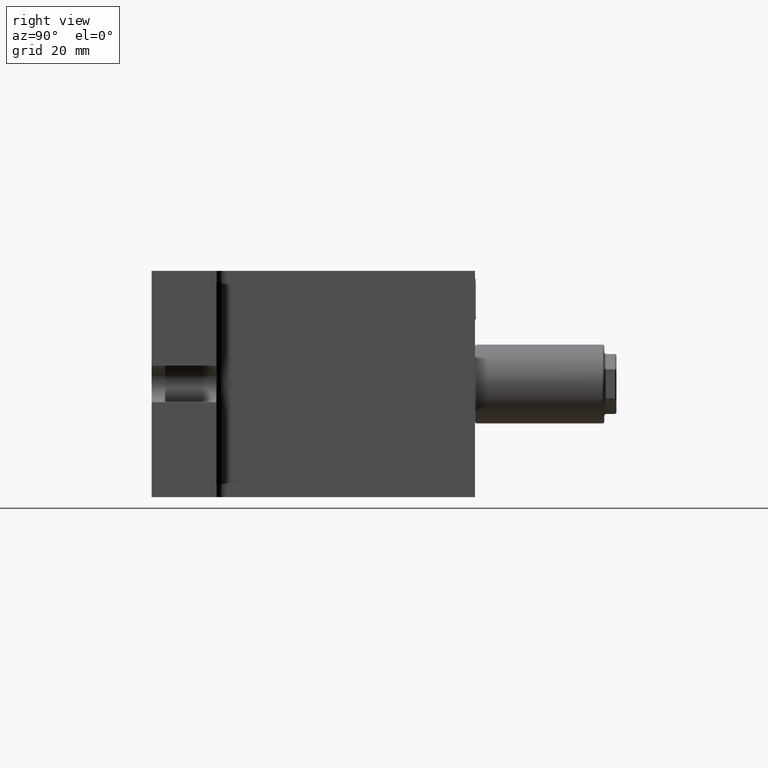
[diagram: clean part render]
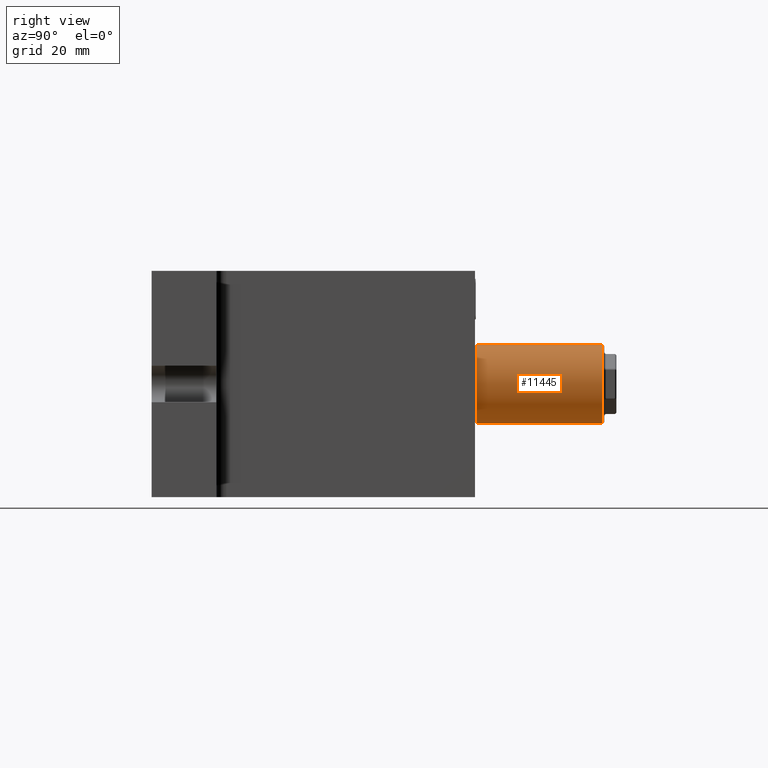
[diagram: same view with one face highlighted and labeled with its STEP entity id]
A machine part, right view. The second image highlights one B-rep face of the part: STEP entity #11445.
In plain terms, the highlighted cylindrical surface (partial cylindrical patch) has radius 9.75 mm, axis along (-0, -1, -0).
Its self-contained STEP definition (entity closure, byte-faithful):
#126 = CARTESIAN_POINT ( 'NONE',  ( 25.00000000000000000, 58.00000000000000000, -9.750000000000000000 ) ) ;
#132 = DIRECTION ( 'NONE',  ( -5.959270968386779200E-017, -1.000000000000000000, -1.089523766022739900E-016 ) ) ;
#225 = VECTOR ( 'NONE', #20667, 1000.000000000000000 ) ;
#270 = CARTESIAN_POINT ( 'NONE',  ( 25.00000000000000000, 48.00000000000000000, 9.750000000000000000 ) ) ;
#287 = VECTOR ( 'NONE', #907, 1000.000000000000000 ) ;
#328 = CARTESIAN_POINT ( 'NONE',  ( 25.00000000000000000, 71.50000000000000000, 9.750000000000014200 ) ) ;
#596 = CARTESIAN_POINT ( 'NONE',  ( 25.00000000000000000, 72.00000000000000000, 9.750000000000014200 ) ) ;
#727 = CARTESIAN_POINT ( 'NONE',  ( 25.00000000000000000, 72.00000000000000000, 9.750000000000000000 ) ) ;
#790 = EDGE_CURVE ( 'NONE', #20809, #1672, #17455, .T. ) ;
#907 = DIRECTION ( 'NONE',  ( -5.959270968386779200E-017, -1.000000000000000000, -1.089523766022739900E-016 ) ) ;
#966 = CARTESIAN_POINT ( 'NONE',  ( 25.00000000000000000, 72.00000000000000000, -9.750000000000000000 ) ) ;
#994 = DIRECTION ( 'NONE',  ( 5.959270968386779200E-017, 1.000000000000000000, 1.089523766022739900E-016 ) ) ;
#1120 = CARTESIAN_POINT ( 'NONE',  ( 24.99999999999999600, 72.00000000000000000, -9.749999999999985800 ) ) ;
#1163 = LINE ( 'NONE', #5758, #5088 ) ;
#1210 = DIRECTION ( 'NONE',  ( 5.959270968386779200E-017, 1.000000000000000000, 1.089523766022739900E-016 ) ) ;
#1672 = VERTEX_POINT ( 'NONE', #9563 ) ;
#1724 = EDGE_CURVE ( 'NONE', #2941, #12449, #18504, .T. ) ;
#1849 = CARTESIAN_POINT ( 'NONE',  ( 25.00000000000000000, 66.00000000000000000, 9.750000000000000000 ) ) ;
#1937 = ORIENTED_EDGE ( 'NONE', *, *, #12181, .T. ) ;
#2329 = ORIENTED_EDGE ( 'NONE', *, *, #7543, .F. ) ;
#2348 = EDGE_CURVE ( 'NONE', #14018, #19616, #11083, .T. ) ;
#2438 = ORIENTED_EDGE ( 'NONE', *, *, #10320, .T. ) ;
#2494 = EDGE_CURVE ( 'NONE', #20809, #21576, #12919, .T. ) ;
#2941 = VERTEX_POINT ( 'NONE', #15650 ) ;
#3083 = VERTEX_POINT ( 'NONE', #7759 ) ;
#3495 = DIRECTION ( 'NONE',  ( -5.959270968386779200E-017, -1.000000000000000000, -1.089523766022739900E-016 ) ) ;
#4282 = CARTESIAN_POINT ( 'NONE',  ( 24.99999999999999600, 72.00000000000000000, -9.749999999999985800 ) ) ;
#4411 = DIRECTION ( 'NONE',  ( 5.959270968386779200E-017, 1.000000000000000000, 1.089523766022739900E-016 ) ) ;
#4803 = VECTOR ( 'NONE', #5654, 1000.000000000000000 ) ;
#5088 = VECTOR ( 'NONE', #9215, 1000.000000000000000 ) ;
#5201 = CARTESIAN_POINT ( 'NONE',  ( 25.00000000000000000, 72.00000000000000000, 1.387778780781446000E-014 ) ) ;
#5492 = ORIENTED_EDGE ( 'NONE', *, *, #9371, .F. ) ;
#5520 = DIRECTION ( 'NONE',  ( -5.959270968386779200E-017, -1.000000000000000000, -1.089523766022739900E-016 ) ) ;
#5654 = DIRECTION ( 'NONE',  ( -5.959270968386779200E-017, -1.000000000000000000, -1.089523766022739900E-016 ) ) ;
#5668 = VERTEX_POINT ( 'NONE', #17061 ) ;
#5744 = AXIS2_PLACEMENT_3D ( 'NONE', #10157, #16974, #18528 ) ;
#5758 = CARTESIAN_POINT ( 'NONE',  ( 24.99999999999999600, 72.00000000000000000, -9.749999999999985800 ) ) ;
#5818 = CIRCLE ( 'NONE', #5744, 9.750000000000000000 ) ;
#5890 = DIRECTION ( 'NONE',  ( -5.959270968386779200E-017, -1.000000000000000000, -1.089523766022739900E-016 ) ) ;
#6061 = DIRECTION ( 'NONE',  ( 0.0000000000000000000, 0.0000000000000000000, -1.000000000000000000 ) ) ;
#6303 = ORIENTED_EDGE ( 'NONE', *, *, #17873, .F. ) ;
#6437 = LINE ( 'NONE', #11152, #17173 ) ;
#6826 = ORIENTED_EDGE ( 'NONE', *, *, #21386, .F. ) ;
#6909 = CARTESIAN_POINT ( 'NONE',  ( 25.00000000000000000, 48.00000000000000000, -9.750000000000000000 ) ) ;
#7018 = ORIENTED_EDGE ( 'NONE', *, *, #20412, .T. ) ;
#7063 = ORIENTED_EDGE ( 'NONE', *, *, #790, .F. ) ;
#7425 = VECTOR ( 'NONE', #4411, 1000.000000000000000 ) ;
#7543 = EDGE_CURVE ( 'NONE', #8110, #18280, #14066, .T. ) ;
#7757 = CARTESIAN_POINT ( 'NONE',  ( 24.99999999999999300, 71.50000000000000000, -9.749999999999985800 ) ) ;
#7759 = CARTESIAN_POINT ( 'NONE',  ( 25.00000000000000000, 66.00000000000000000, -9.750000000000000000 ) ) ;
#7857 = VERTEX_POINT ( 'NONE', #328 ) ;
#8020 = DIRECTION ( 'NONE',  ( -5.959270968386779200E-017, -1.000000000000000000, -1.089523766022739900E-016 ) ) ;
#8035 = CIRCLE ( 'NONE', #11564, 9.750000000000000000 ) ;
#8110 = VERTEX_POINT ( 'NONE', #11370 ) ;
#8124 = DIRECTION ( 'NONE',  ( -5.959270968386779200E-017, -1.000000000000000000, -1.089523766022739900E-016 ) ) ;
#8136 = DIRECTION ( 'NONE',  ( -5.959270968386779200E-017, -1.000000000000000000, -1.089523766022739900E-016 ) ) ;
#9215 = DIRECTION ( 'NONE',  ( -5.959270968386779200E-017, -1.000000000000000000, -1.089523766022739900E-016 ) ) ;
#9275 = FACE_OUTER_BOUND ( 'NONE', #14084, .T. ) ;
#9371 = EDGE_CURVE ( 'NONE', #3083, #2941, #6437, .T. ) ;
#9518 = CARTESIAN_POINT ( 'NONE',  ( 25.00000000000000000, 72.00000000000000000, 9.750000000000014200 ) ) ;
#9563 = CARTESIAN_POINT ( 'NONE',  ( 24.99999999999999300, 40.50000000000000000, -9.750000000000000000 ) ) ;
#10157 = CARTESIAN_POINT ( 'NONE',  ( 25.00000000000000000, 71.50000000000000000, 1.387778780781446000E-014 ) ) ;
#10320 = EDGE_CURVE ( 'NONE', #14411, #14018, #16120, .T. ) ;
#10479 = LINE ( 'NONE', #11266, #17057 ) ;
#11083 = LINE ( 'NONE', #596, #4803 ) ;
#11093 = ORIENTED_EDGE ( 'NONE', *, *, #20221, .F. ) ;
#11152 = CARTESIAN_POINT ( 'NONE',  ( 25.00000000000000000, 72.00000000000000000, -9.750000000000000000 ) ) ;
#11253 = CARTESIAN_POINT ( 'NONE',  ( 25.00000000000000000, 72.00000000000000000, 9.750000000000000000 ) ) ;
#11266 = CARTESIAN_POINT ( 'NONE',  ( 25.00000000000000000, 72.00000000000000000, 9.750000000000014200 ) ) ;
#11370 = CARTESIAN_POINT ( 'NONE',  ( 25.00000000000000000, 56.00000000000000000, 9.750000000000000000 ) ) ;
#11445 = ADVANCED_FACE ( 'NONE', ( #9275 ), #17935, .T. ) ;
#11460 = ORIENTED_EDGE ( 'NONE', *, *, #1724, .F. ) ;
#11539 = VECTOR ( 'NONE', #5520, 1000.000000000000000 ) ;
#11564 = AXIS2_PLACEMENT_3D ( 'NONE', #16092, #994, #6061 ) ;
#11755 = LINE ( 'NONE', #727, #225 ) ;
#11848 = LINE ( 'NONE', #9518, #17098 ) ;
#12066 = AXIS2_PLACEMENT_3D ( 'NONE', #5201, #17085, #20371 ) ;
#12100 = VERTEX_POINT ( 'NONE', #17146 ) ;
#12181 = EDGE_CURVE ( 'NONE', #7857, #17776, #11848, .T. ) ;
#12209 = VECTOR ( 'NONE', #132, 1000.000000000000000 ) ;
#12383 = EDGE_CURVE ( 'NONE', #19988, #7857, #5818, .T. ) ;
#12447 = VECTOR ( 'NONE', #3495, 1000.000000000000000 ) ;
#12449 = VERTEX_POINT ( 'NONE', #126 ) ;
#12919 = LINE ( 'NONE', #966, #7425 ) ;
#12931 = ORIENTED_EDGE ( 'NONE', *, *, #2494, .T. ) ;
#13030 = CARTESIAN_POINT ( 'NONE',  ( 25.00000000000000000, 72.00000000000000000, 9.750000000000000000 ) ) ;
#13451 = CARTESIAN_POINT ( 'NONE',  ( 24.99999999999999600, 72.00000000000000000, -9.749999999999985800 ) ) ;
#13547 = VECTOR ( 'NONE', #1210, 1000.000000000000000 ) ;
#13619 = EDGE_CURVE ( 'NONE', #8110, #14411, #10479, .T. ) ;
#13826 = EDGE_CURVE ( 'NONE', #5668, #18280, #18372, .T. ) ;
#13957 = CARTESIAN_POINT ( 'NONE',  ( 25.00000000000000000, 72.00000000000000000, -9.750000000000000000 ) ) ;
#14001 = VECTOR ( 'NONE', #5890, 1000.000000000000000 ) ;
#14018 = VERTEX_POINT ( 'NONE', #270 ) ;
#14066 = LINE ( 'NONE', #11253, #13547 ) ;
#14084 = EDGE_LOOP ( 'NONE', ( #18837, #20765, #1937, #6303, #20959, #2329, #17172, #2438, #18186, #7018, #7063, #12931, #6826, #11093, #11460, #5492 ) ) ;
#14411 = VERTEX_POINT ( 'NONE', #19155 ) ;
#15363 = LINE ( 'NONE', #13957, #12209 ) ;
#15650 = CARTESIAN_POINT ( 'NONE',  ( 25.00000000000000000, 64.00000000000000000, -9.750000000000000000 ) ) ;
#16092 = CARTESIAN_POINT ( 'NONE',  ( 25.00000000000000000, 40.50000000000000000, 0.0000000000000000000 ) ) ;
#16120 = LINE ( 'NONE', #13030, #20324 ) ;
#16262 = EDGE_CURVE ( 'NONE', #19988, #3083, #17893, .T. ) ;
#16279 = CARTESIAN_POINT ( 'NONE',  ( 25.00000000000000000, 40.50000000000000000, 9.750000000000000000 ) ) ;
#16974 = DIRECTION ( 'NONE',  ( -5.959270968386779200E-017, -1.000000000000000000, -1.089523766022739900E-016 ) ) ;
#17057 = VECTOR ( 'NONE', #8124, 1000.000000000000000 ) ;
#17061 = CARTESIAN_POINT ( 'NONE',  ( 25.00000000000000000, 64.00000000000000000, 9.750000000000000000 ) ) ;
#17085 = DIRECTION ( 'NONE',  ( -5.959270968386779200E-017, -1.000000000000000000, -1.089523766022739900E-016 ) ) ;
#17098 = VECTOR ( 'NONE', #21154, 1000.000000000000000 ) ;
#17146 = CARTESIAN_POINT ( 'NONE',  ( 25.00000000000000000, 56.00000000000000000, -9.750000000000000000 ) ) ;
#17172 = ORIENTED_EDGE ( 'NONE', *, *, #13619, .T. ) ;
#17173 = VECTOR ( 'NONE', #8020, 1000.000000000000000 ) ;
#17195 = CARTESIAN_POINT ( 'NONE',  ( 25.00000000000000000, 72.00000000000000000, 9.750000000000014200 ) ) ;
#17455 = LINE ( 'NONE', #13451, #12447 ) ;
#17776 = VERTEX_POINT ( 'NONE', #1849 ) ;
#17873 = EDGE_CURVE ( 'NONE', #5668, #17776, #11755, .T. ) ;
#17893 = LINE ( 'NONE', #4282, #287 ) ;
#17935 = CYLINDRICAL_SURFACE ( 'NONE', #12066, 9.750000000000000000 ) ;
#18186 = ORIENTED_EDGE ( 'NONE', *, *, #2348, .T. ) ;
#18280 = VERTEX_POINT ( 'NONE', #20568 ) ;
#18372 = LINE ( 'NONE', #17195, #11539 ) ;
#18454 = CARTESIAN_POINT ( 'NONE',  ( 25.00000000000000000, 50.00000000000000000, -9.750000000000000000 ) ) ;
#18504 = LINE ( 'NONE', #1120, #14001 ) ;
#18528 = DIRECTION ( 'NONE',  ( 0.0000000000000000000, 0.0000000000000000000, -1.000000000000000000 ) ) ;
#18837 = ORIENTED_EDGE ( 'NONE', *, *, #16262, .F. ) ;
#19155 = CARTESIAN_POINT ( 'NONE',  ( 25.00000000000000000, 50.00000000000000000, 9.750000000000000000 ) ) ;
#19616 = VERTEX_POINT ( 'NONE', #16279 ) ;
#19988 = VERTEX_POINT ( 'NONE', #7757 ) ;
#20221 = EDGE_CURVE ( 'NONE', #12449, #12100, #15363, .T. ) ;
#20324 = VECTOR ( 'NONE', #8136, 1000.000000000000000 ) ;
#20371 = DIRECTION ( 'NONE',  ( 0.0000000000000000000, 0.0000000000000000000, 1.000000000000000000 ) ) ;
#20412 = EDGE_CURVE ( 'NONE', #19616, #1672, #8035, .T. ) ;
#20568 = CARTESIAN_POINT ( 'NONE',  ( 25.00000000000000000, 58.00000000000000000, 9.750000000000000000 ) ) ;
#20667 = DIRECTION ( 'NONE',  ( 5.959270968386779200E-017, 1.000000000000000000, 1.089523766022739900E-016 ) ) ;
#20765 = ORIENTED_EDGE ( 'NONE', *, *, #12383, .T. ) ;
#20809 = VERTEX_POINT ( 'NONE', #6909 ) ;
#20959 = ORIENTED_EDGE ( 'NONE', *, *, #13826, .T. ) ;
#21154 = DIRECTION ( 'NONE',  ( -5.959270968386779200E-017, -1.000000000000000000, -1.089523766022739900E-016 ) ) ;
#21386 = EDGE_CURVE ( 'NONE', #12100, #21576, #1163, .T. ) ;
#21576 = VERTEX_POINT ( 'NONE', #18454 ) ;